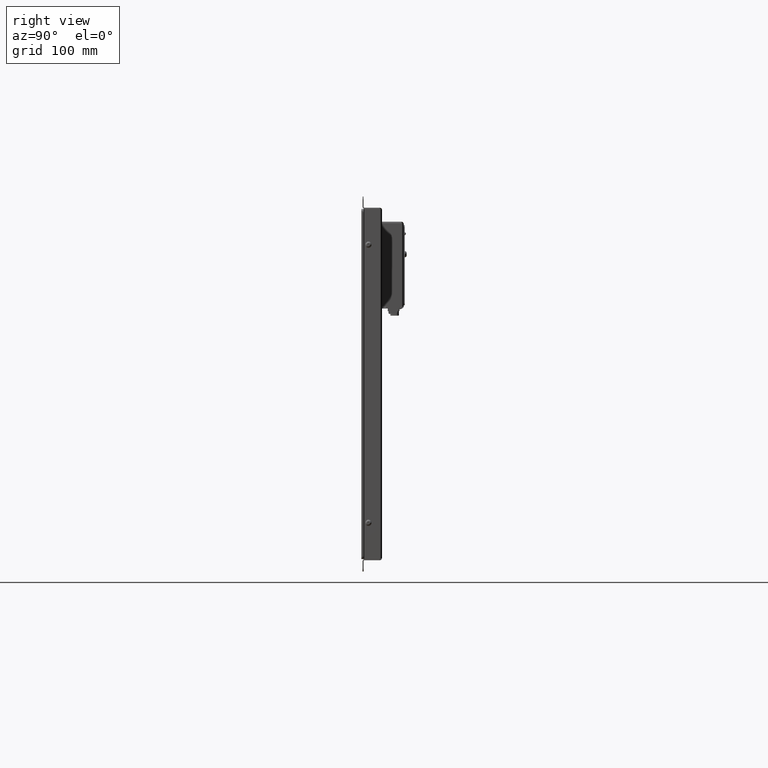
[diagram: clean part render]
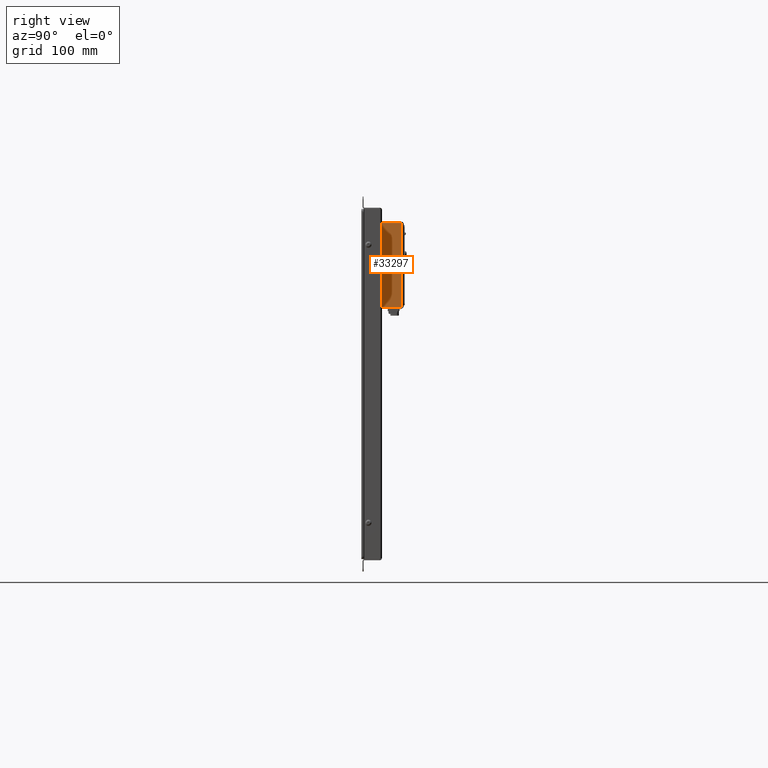
[diagram: same view with one face highlighted and labeled with its STEP entity id]
A machine part, right view. The second image highlights one B-rep face of the part: STEP entity #33297.
In plain terms, the highlighted planar face has unit normal (-1, 0, 0).
Its self-contained STEP definition (entity closure, byte-faithful):
#1894=FACE_OUTER_BOUND('',#3827,.T.);
#3827=EDGE_LOOP('',(#22846,#22847,#22848,#22849));
#6175=LINE('',#50101,#9328);
#6179=LINE('',#50211,#9332);
#6182=LINE('',#50216,#9335);
#6204=LINE('',#50456,#9357);
#9328=VECTOR('',#40105,10.);
#9332=VECTOR('',#40113,10.);
#9335=VECTOR('',#40118,10.);
#9357=VECTOR('',#40156,10.);
#13786=VERTEX_POINT('',#49990);
#13798=VERTEX_POINT('',#50099);
#13802=VERTEX_POINT('',#50210);
#13803=VERTEX_POINT('',#50214);
#17264=EDGE_CURVE('',#13798,#13786,#6175,.T.);
#17273=EDGE_CURVE('',#13798,#13802,#6179,.T.);
#17276=EDGE_CURVE('',#13802,#13803,#6182,.T.);
#17307=EDGE_CURVE('',#13803,#13786,#6204,.T.);
#22846=ORIENTED_EDGE('',*,*,#17307,.T.);
#22847=ORIENTED_EDGE('',*,*,#17264,.F.);
#22848=ORIENTED_EDGE('',*,*,#17273,.T.);
#22849=ORIENTED_EDGE('',*,*,#17276,.T.);
#30835=PLANE('',#35875);
#33297=ADVANCED_FACE('',(#1894),#30835,.F.);
#35875=AXIS2_PLACEMENT_3D('',#50458,#40158,#40159);
#40105=DIRECTION('',(9.86864910777917E-16,1.72701359386135E-15,-1.));
#40113=DIRECTION('',(0.,-1.,0.));
#40118=DIRECTION('',(2.96059473233375E-15,-1.72701359386135E-15,-1.));
#40156=DIRECTION('',(-4.13586793642697E-18,1.,-7.09352842422617E-33));
#40158=DIRECTION('center_axis',(-1.,-4.13586793642697E-18,-1.33297297823392E-15));
#40159=DIRECTION('ref_axis',(-1.33297297823392E-15,0.,1.));
#49990=CARTESIAN_POINT('',(84.,38.9,2.00000000000002));
#50099=CARTESIAN_POINT('',(84.,38.9,20.));
#50101=CARTESIAN_POINT('',(84.,38.9,2.00000000000001));
#50210=CARTESIAN_POINT('',(84.,-38.9,20.));
#50211=CARTESIAN_POINT('',(84.,407.46178996699,20.));
#50214=CARTESIAN_POINT('',(84.,-38.9,2.00000000000002));
#50216=CARTESIAN_POINT('',(84.,-38.9,2.00000000000001));
#50456=CARTESIAN_POINT('',(84.,3.02547354640577E-14,2.00000000000001));
#50458=CARTESIAN_POINT('Origin',(84.,2.4980018054066E-14,9.86902664470767));